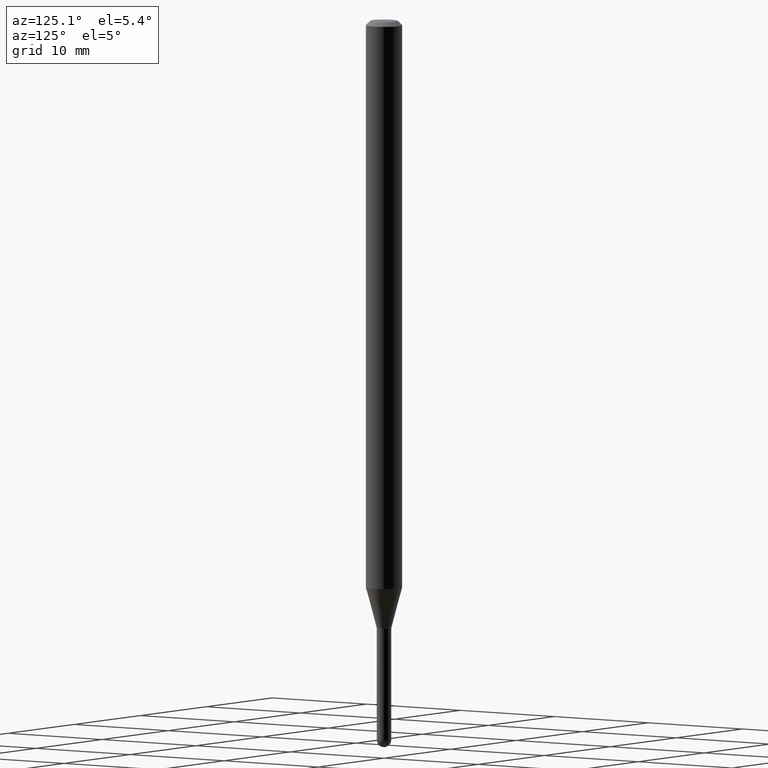
[diagram: clean part render]
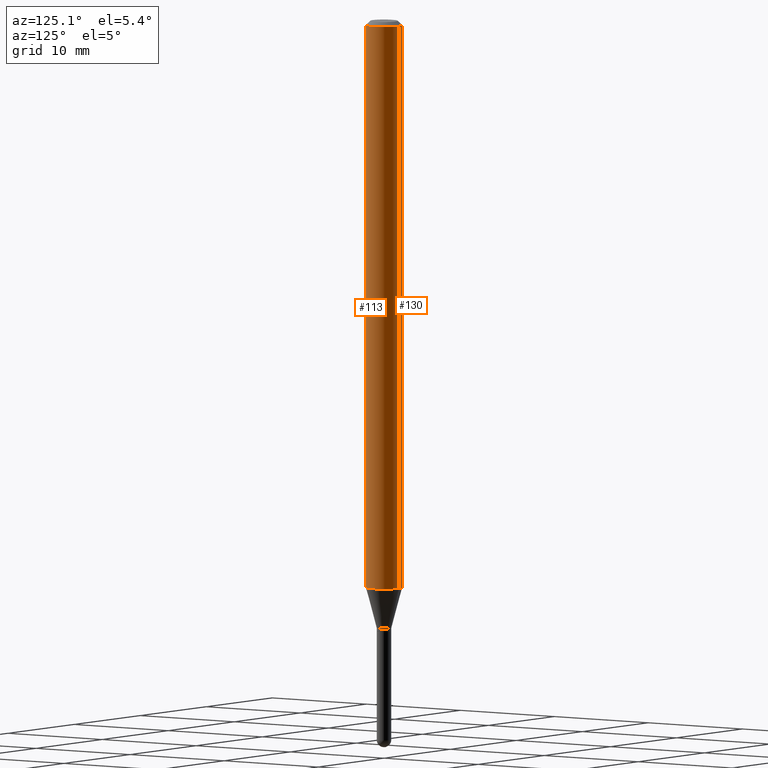
[diagram: same view with one multi-face feature highlighted, each face labeled with its STEP entity id]
A machine part, auxiliary view. The highlighted faces form ONE feature: a constant-radius fillet chain: 2 tangent blend faces with common blend radius 1.5875 mm. The faces share edges in the B-rep.
Their STEP definitions:
[1] entity #130 (Cylinder):
#3 = CARTESIAN_POINT ( 'NONE',  ( 4.440892098501099478E-16, 0.06249999999999315131, -1.950048094716166691 ) ) ;
#12 = EDGE_CURVE ( 'NONE', #359, #162, #119, .T. ) ;
#13 = VECTOR ( 'NONE', #320, 39.37007874015748143 ) ;
#31 = VECTOR ( 'NONE', #460, 39.37007874015748143 ) ;
#39 = EDGE_LOOP ( 'NONE', ( #474, #381, #374, #229 ) ) ;
#72 = CARTESIAN_POINT ( 'NONE',  ( 4.440892098500625669E-16, 0.06250000000000000000, -2.182190774808525881E-16 ) ) ;
#83 = CARTESIAN_POINT ( 'NONE',  ( -4.364351673553916201E-16, -0.06250000000000000000, 2.182190774808525881E-16 ) ) ;
#99 = CARTESIAN_POINT ( 'NONE',  ( 0.000000000000000000, 0.000000000000000000, 0.000000000000000000 ) ) ;
#104 = DIRECTION ( 'NONE',  ( -2.445452116310438787E-29, 3.491505239693641409E-15, 1.000000000000000000 ) ) ;
#119 = LINE ( 'NONE', #83, #13 ) ;
#130 = ADVANCED_FACE ( 'NONE', ( #504 ), #330, .T. ) ;
#149 = LINE ( 'NONE', #72, #31 ) ;
#162 = VERTEX_POINT ( 'NONE', #448 ) ;
#175 = DIRECTION ( 'NONE',  ( -6.982962677686265922E-15, -1.000000000000000000, 3.483106191921935554E-15 ) ) ;
#203 = AXIS2_PLACEMENT_3D ( 'NONE', #282, #442, #175 ) ;
#206 = EDGE_CURVE ( 'NONE', #298, #162, #216, .T. ) ;
#216 = CIRCLE ( 'NONE', #203, 0.06250000000000000000 ) ;
#229 = ORIENTED_EDGE ( 'NONE', *, *, #206, .F. ) ;
#240 = AXIS2_PLACEMENT_3D ( 'NONE', #308, #242, #431 ) ;
#242 = DIRECTION ( 'NONE',  ( -2.445452116310438787E-29, 3.491505239693641409E-15, 1.000000000000000000 ) ) ;
#282 = CARTESIAN_POINT ( 'NONE',  ( 3.668178174465738773E-31, -5.237257859540576252E-17, -0.01500000000000032904 ) ) ;
#298 = VERTEX_POINT ( 'NONE', #497 ) ;
#300 = EDGE_CURVE ( 'NONE', #365, #298, #149, .T. ) ;
#308 = CARTESIAN_POINT ( 'NONE',  ( 4.768749240130788983E-29, -6.808603140356097792E-15, -1.950048094716166469 ) ) ;
#320 = DIRECTION ( 'NONE',  ( -2.445452116310438787E-29, 3.491505239693641015E-15, 1.000000000000000000 ) ) ;
#330 = CYLINDRICAL_SURFACE ( 'NONE', #332, 0.06250000000000000000 ) ;
#332 = AXIS2_PLACEMENT_3D ( 'NONE', #99, #104, #379 ) ;
#359 = VERTEX_POINT ( 'NONE', #388 ) ;
#365 = VERTEX_POINT ( 'NONE', #3 ) ;
#374 = ORIENTED_EDGE ( 'NONE', *, *, #12, .T. ) ;
#379 = DIRECTION ( 'NONE',  ( -6.982962677686265922E-15, -1.000000000000000000, 3.491505239693641409E-15 ) ) ;
#381 = ORIENTED_EDGE ( 'NONE', *, *, #490, .T. ) ;
#388 = CARTESIAN_POINT ( 'NONE',  ( -4.364351673553440419E-16, -0.06250000000000682787, -1.950048094716166247 ) ) ;
#400 = CIRCLE ( 'NONE', #240, 0.06250000000000000000 ) ;
#431 = DIRECTION ( 'NONE',  ( -6.982962677686265922E-15, -1.000000000000000000, 4.370956789862821150E-15 ) ) ;
#442 = DIRECTION ( 'NONE',  ( -2.445452116310438787E-29, 3.491505239693641409E-15, 1.000000000000000000 ) ) ;
#448 = CARTESIAN_POINT ( 'NONE',  ( -4.364351673553912750E-16, -0.06250000000000005551, -0.01500000000000011047 ) ) ;
#460 = DIRECTION ( 'NONE',  ( -2.445452116310438787E-29, 3.491505239693641015E-15, 1.000000000000000000 ) ) ;
#474 = ORIENTED_EDGE ( 'NONE', *, *, #300, .F. ) ;
#490 = EDGE_CURVE ( 'NONE', #365, #359, #400, .T. ) ;
#497 = CARTESIAN_POINT ( 'NONE',  ( 4.440892098501106381E-16, 0.06249999999999995837, -0.01500000000000054588 ) ) ;
#504 = FACE_OUTER_BOUND ( 'NONE', #39, .T. ) ;
[2] entity #113 (Cylinder):
#3 = CARTESIAN_POINT ( 'NONE',  ( 4.440892098501099478E-16, 0.06249999999999315131, -1.950048094716166691 ) ) ;
#12 = EDGE_CURVE ( 'NONE', #359, #162, #119, .T. ) ;
#13 = VECTOR ( 'NONE', #320, 39.37007874015748143 ) ;
#19 = EDGE_CURVE ( 'NONE', #162, #298, #196, .T. ) ;
#22 = DIRECTION ( 'NONE',  ( -6.982962677686265922E-15, -1.000000000000000000, 3.491505239693641409E-15 ) ) ;
#29 = ORIENTED_EDGE ( 'NONE', *, *, #74, .T. ) ;
#31 = VECTOR ( 'NONE', #460, 39.37007874015748143 ) ;
#72 = CARTESIAN_POINT ( 'NONE',  ( 4.440892098500625669E-16, 0.06250000000000000000, -2.182190774808525881E-16 ) ) ;
#74 = EDGE_CURVE ( 'NONE', #359, #365, #446, .T. ) ;
#83 = CARTESIAN_POINT ( 'NONE',  ( -4.364351673553916201E-16, -0.06250000000000000000, 2.182190774808525881E-16 ) ) ;
#109 = DIRECTION ( 'NONE',  ( -6.982962677686265922E-15, -1.000000000000000000, 3.483106191921935554E-15 ) ) ;
#113 = ADVANCED_FACE ( 'NONE', ( #453 ), #220, .T. ) ;
#119 = LINE ( 'NONE', #83, #13 ) ;
#126 = DIRECTION ( 'NONE',  ( -2.445452116310438787E-29, 3.491505239693641409E-15, 1.000000000000000000 ) ) ;
#149 = LINE ( 'NONE', #72, #31 ) ;
#159 = AXIS2_PLACEMENT_3D ( 'NONE', #204, #126, #109 ) ;
#162 = VERTEX_POINT ( 'NONE', #448 ) ;
#178 = AXIS2_PLACEMENT_3D ( 'NONE', #476, #200, #491 ) ;
#184 = AXIS2_PLACEMENT_3D ( 'NONE', #232, #299, #22 ) ;
#196 = CIRCLE ( 'NONE', #159, 0.06250000000000000000 ) ;
#200 = DIRECTION ( 'NONE',  ( -2.445452116310438787E-29, 3.491505239693641409E-15, 1.000000000000000000 ) ) ;
#204 = CARTESIAN_POINT ( 'NONE',  ( 3.668178174465738773E-31, -5.237257859540576252E-17, -0.01500000000000032904 ) ) ;
#220 = CYLINDRICAL_SURFACE ( 'NONE', #184, 0.06250000000000000000 ) ;
#232 = CARTESIAN_POINT ( 'NONE',  ( 0.000000000000000000, 0.000000000000000000, 0.000000000000000000 ) ) ;
#298 = VERTEX_POINT ( 'NONE', #497 ) ;
#299 = DIRECTION ( 'NONE',  ( -2.445452116310438787E-29, 3.491505239693641409E-15, 1.000000000000000000 ) ) ;
#300 = EDGE_CURVE ( 'NONE', #365, #298, #149, .T. ) ;
#320 = DIRECTION ( 'NONE',  ( -2.445452116310438787E-29, 3.491505239693641015E-15, 1.000000000000000000 ) ) ;
#359 = VERTEX_POINT ( 'NONE', #388 ) ;
#365 = VERTEX_POINT ( 'NONE', #3 ) ;
#388 = CARTESIAN_POINT ( 'NONE',  ( -4.364351673553440419E-16, -0.06250000000000682787, -1.950048094716166247 ) ) ;
#423 = ORIENTED_EDGE ( 'NONE', *, *, #19, .F. ) ;
#446 = CIRCLE ( 'NONE', #178, 0.06250000000000000000 ) ;
#448 = CARTESIAN_POINT ( 'NONE',  ( -4.364351673553912750E-16, -0.06250000000000005551, -0.01500000000000011047 ) ) ;
#451 = ORIENTED_EDGE ( 'NONE', *, *, #300, .T. ) ;
#453 = FACE_OUTER_BOUND ( 'NONE', #512, .T. ) ;
#460 = DIRECTION ( 'NONE',  ( -2.445452116310438787E-29, 3.491505239693641015E-15, 1.000000000000000000 ) ) ;
#470 = ORIENTED_EDGE ( 'NONE', *, *, #12, .F. ) ;
#476 = CARTESIAN_POINT ( 'NONE',  ( 4.768749240130788983E-29, -6.808603140356097792E-15, -1.950048094716166469 ) ) ;
#491 = DIRECTION ( 'NONE',  ( -6.982962677686265922E-15, -1.000000000000000000, 4.370956789862821150E-15 ) ) ;
#497 = CARTESIAN_POINT ( 'NONE',  ( 4.440892098501106381E-16, 0.06249999999999995837, -0.01500000000000054588 ) ) ;
#512 = EDGE_LOOP ( 'NONE', ( #29, #451, #423, #470 ) ) ;